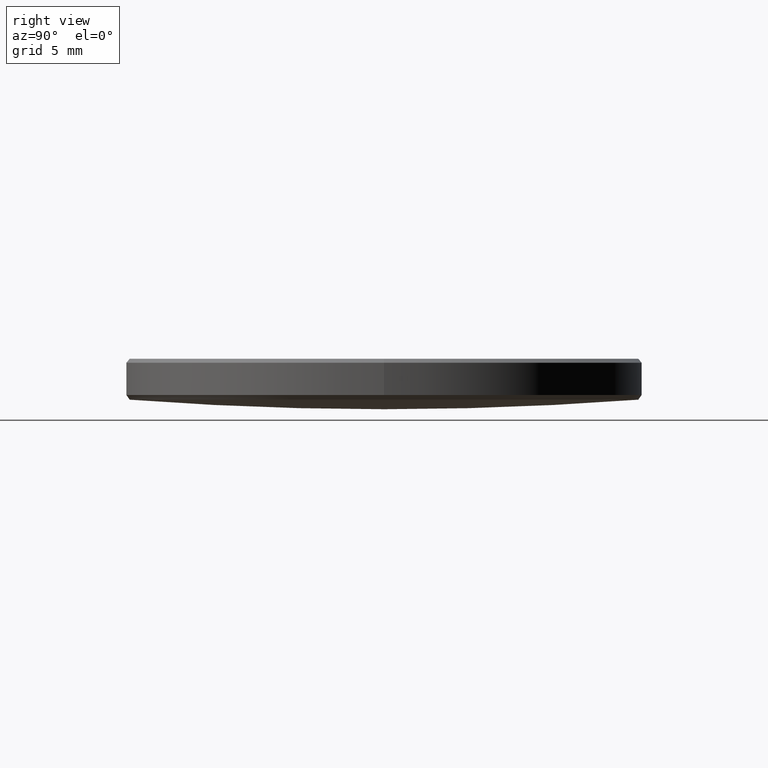
[diagram: clean part render]
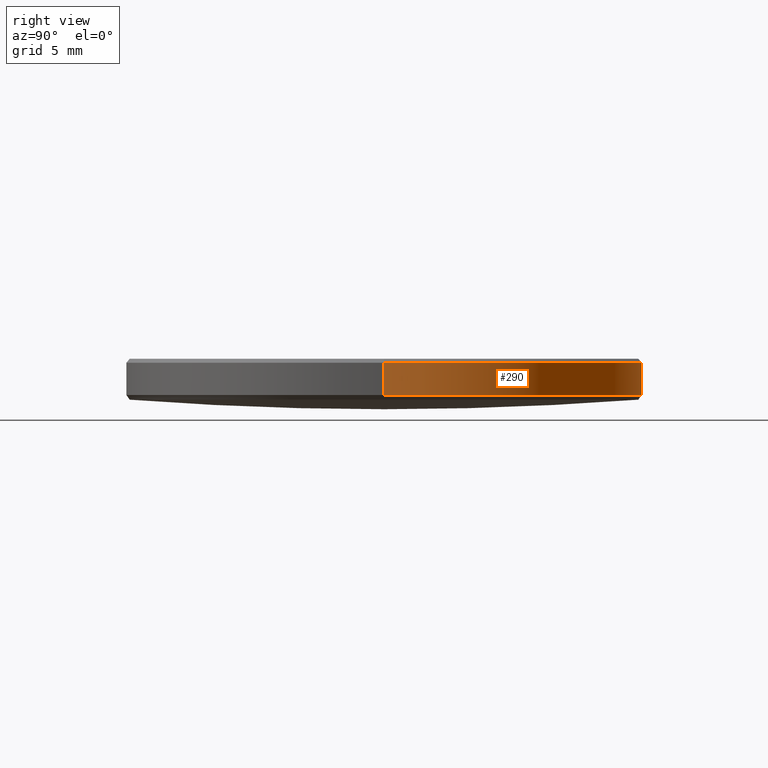
[diagram: same view with one face highlighted and labeled with its STEP entity id]
A machine part, right view. The second image highlights one B-rep face of the part: STEP entity #290.
In plain terms, the highlighted cylindrical surface (partial cylindrical patch) has radius 12.7 mm, axis along (-0, -0, -1).
Its self-contained STEP definition (entity closure, byte-faithful):
#4 = DIRECTION ( 'NONE',  ( -0.000000000000000000, -0.000000000000000000, -1.000000000000000000 ) ) ;
#6 = AXIS2_PLACEMENT_3D ( 'NONE', #54, #28, #308 ) ;
#15 = EDGE_LOOP ( 'NONE', ( #21, #20, #193, #106 ) ) ;
#20 = ORIENTED_EDGE ( 'NONE', *, *, #43, .T. ) ;
#21 = ORIENTED_EDGE ( 'NONE', *, *, #280, .T. ) ;
#28 = DIRECTION ( 'NONE',  ( 0.000000000000000000, 0.000000000000000000, -1.000000000000000000 ) ) ;
#29 = VECTOR ( 'NONE', #4, 1000.000000000000000 ) ;
#36 = CARTESIAN_POINT ( 'NONE',  ( -12.69999999999999929, 0.000000000000000000, 4.217170936316433583 ) ) ;
#37 = EDGE_CURVE ( 'NONE', #146, #219, #208, .T. ) ;
#43 = EDGE_CURVE ( 'NONE', #147, #129, #53, .T. ) ;
#53 = LINE ( 'NONE', #282, #29 ) ;
#54 = CARTESIAN_POINT ( 'NONE',  ( 0.000000000000000000, 0.000000000000000000, 5.799999999999916334 ) ) ;
#84 = DIRECTION ( 'NONE',  ( -1.000000000000000000, 0.000000000000000000, 0.000000000000000000 ) ) ;
#88 = FACE_OUTER_BOUND ( 'NONE', #15, .T. ) ;
#97 = VECTOR ( 'NONE', #234, 1000.000000000000000 ) ;
#106 = ORIENTED_EDGE ( 'NONE', *, *, #37, .F. ) ;
#115 = CARTESIAN_POINT ( 'NONE',  ( 0.000000000000000000, 0.000000000000000000, 4.217170936316433583 ) ) ;
#117 = CIRCLE ( 'NONE', #6, 12.69999999999999929 ) ;
#118 = CYLINDRICAL_SURFACE ( 'NONE', #164, 12.69999999999999929 ) ;
#129 = VERTEX_POINT ( 'NONE', #162 ) ;
#146 = VERTEX_POINT ( 'NONE', #307 ) ;
#147 = VERTEX_POINT ( 'NONE', #301 ) ;
#150 = AXIS2_PLACEMENT_3D ( 'NONE', #115, #211, #84 ) ;
#162 = CARTESIAN_POINT ( 'NONE',  ( 12.69999999999999929, 1.555301434917138433E-15, 4.217170936316433583 ) ) ;
#164 = AXIS2_PLACEMENT_3D ( 'NONE', #189, #315, #289 ) ;
#189 = CARTESIAN_POINT ( 'NONE',  ( 0.000000000000000000, 0.000000000000000000, 10.00000000000000000 ) ) ;
#193 = ORIENTED_EDGE ( 'NONE', *, *, #279, .T. ) ;
#208 = LINE ( 'NONE', #278, #97 ) ;
#211 = DIRECTION ( 'NONE',  ( -0.000000000000000000, -0.000000000000000000, 1.000000000000000000 ) ) ;
#219 = VERTEX_POINT ( 'NONE', #36 ) ;
#234 = DIRECTION ( 'NONE',  ( -0.000000000000000000, -0.000000000000000000, -1.000000000000000000 ) ) ;
#248 = CIRCLE ( 'NONE', #150, 12.69999999999999929 ) ;
#278 = CARTESIAN_POINT ( 'NONE',  ( -12.69999999999999929, 0.000000000000000000, 10.00000000000000000 ) ) ;
#279 = EDGE_CURVE ( 'NONE', #129, #219, #248, .T. ) ;
#280 = EDGE_CURVE ( 'NONE', #146, #147, #117, .T. ) ;
#282 = CARTESIAN_POINT ( 'NONE',  ( 12.69999999999999929, 1.555301434917138433E-15, 10.00000000000000000 ) ) ;
#289 = DIRECTION ( 'NONE',  ( -1.000000000000000000, 0.000000000000000000, 0.000000000000000000 ) ) ;
#290 = ADVANCED_FACE ( 'NONE', ( #88 ), #118, .T. ) ;
#301 = CARTESIAN_POINT ( 'NONE',  ( 12.69999999999999929, 1.555301434917138433E-15, 5.799999999999916334 ) ) ;
#307 = CARTESIAN_POINT ( 'NONE',  ( -12.69999999999999929, 0.000000000000000000, 5.799999999999916334 ) ) ;
#308 = DIRECTION ( 'NONE',  ( 1.000000000000000000, 0.000000000000000000, 0.000000000000000000 ) ) ;
#315 = DIRECTION ( 'NONE',  ( -0.000000000000000000, -0.000000000000000000, -1.000000000000000000 ) ) ;